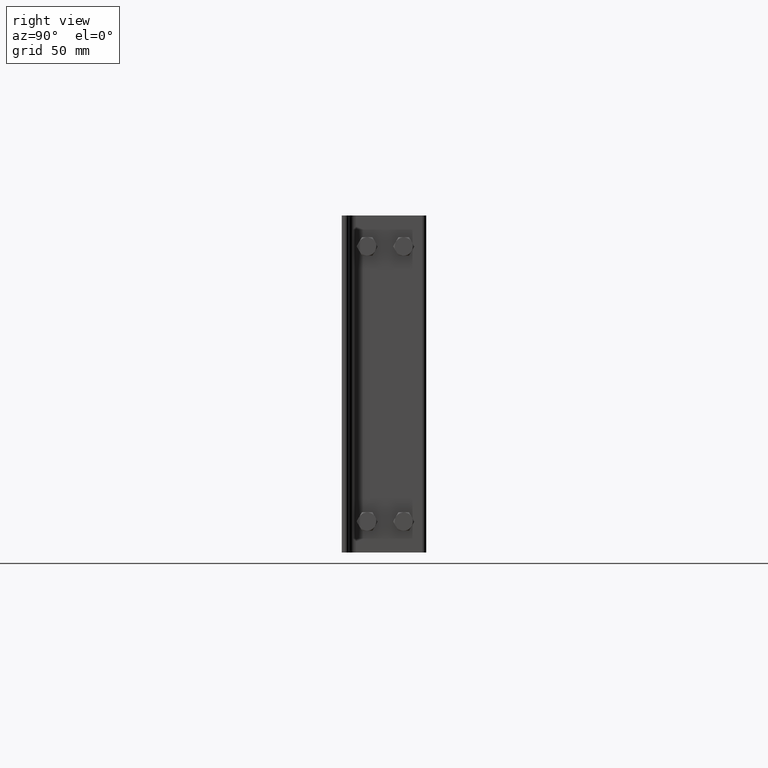
[diagram: clean part render]
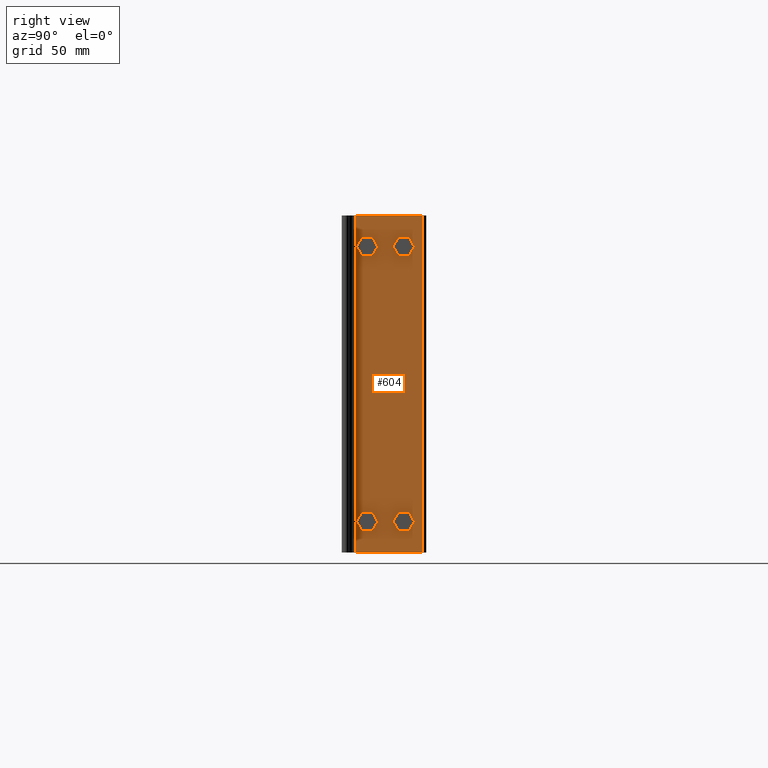
[diagram: same view with one face highlighted and labeled with its STEP entity id]
A machine part, right view. The second image highlights one B-rep face of the part: STEP entity #604.
In plain terms, the highlighted planar face has unit normal (1, -0, 0).
Its self-contained STEP definition (entity closure, byte-faithful):
#151=CARTESIAN_POINT('',(4.999999999999957,48.249999999999993,22.0));
#152=VERTEX_POINT('',#151);
#153=CARTESIAN_POINT('',(4.999999999999965,44.0,22.0));
#154=DIRECTION('',(-1.0,0.0,0.0));
#155=DIRECTION('',(0.0,-1.0,0.0));
#156=AXIS2_PLACEMENT_3D('',#153,#154,#155);
#157=CIRCLE('',#156,4.25);
#158=EDGE_CURVE('',#152,#152,#157,.T.);
#179=CARTESIAN_POINT('',(4.999999999999957,48.249999999999993,217.50000000000003));
#180=VERTEX_POINT('',#179);
#181=CARTESIAN_POINT('',(4.999999999999965,44.0,217.50000000000003));
#182=DIRECTION('',(-1.0,0.0,0.0));
#183=DIRECTION('',(0.0,-1.0,0.0));
#184=AXIS2_PLACEMENT_3D('',#181,#182,#183);
#185=CIRCLE('',#184,4.25);
#186=EDGE_CURVE('',#180,#180,#185,.T.);
#207=CARTESIAN_POINT('',(4.999999999999965,22.249999999999996,22.0));
#208=VERTEX_POINT('',#207);
#209=CARTESIAN_POINT('',(4.999999999999965,18.0,22.0));
#210=DIRECTION('',(-1.0,0.0,0.0));
#211=DIRECTION('',(0.0,-1.0,0.0));
#212=AXIS2_PLACEMENT_3D('',#209,#210,#211);
#213=CIRCLE('',#212,4.25);
#214=EDGE_CURVE('',#208,#208,#213,.T.);
#235=CARTESIAN_POINT('',(4.999999999999965,22.249999999999996,217.50000000000003));
#236=VERTEX_POINT('',#235);
#237=CARTESIAN_POINT('',(4.999999999999965,18.0,217.50000000000003));
#238=DIRECTION('',(-1.0,0.0,0.0));
#239=DIRECTION('',(0.0,-1.0,0.0));
#240=AXIS2_PLACEMENT_3D('',#237,#238,#239);
#241=CIRCLE('',#240,4.25);
#242=EDGE_CURVE('',#236,#236,#241,.T.);
#431=CARTESIAN_POINT('',(4.999999999999982,57.0,0.0));
#432=VERTEX_POINT('',#431);
#440=CARTESIAN_POINT('',(4.999999999999991,9.999999999999998,0.0));
#441=VERTEX_POINT('',#440);
#442=CARTESIAN_POINT('',(4.999999999999991,9.999999999999998,0.0));
#443=DIRECTION('',(0.0,1.0,0.0));
#444=VECTOR('',#443,47.0);
#445=LINE('',#442,#444);
#446=EDGE_CURVE('',#441,#432,#445,.T.);
#466=CARTESIAN_POINT('',(4.999999999999982,57.0,239.50000000000003));
#467=VERTEX_POINT('',#466);
#475=CARTESIAN_POINT('',(4.999999999999982,57.0,239.50000000000003));
#476=DIRECTION('',(0.0,0.0,-1.0));
#477=VECTOR('',#476,239.50000000000003);
#478=LINE('',#475,#477);
#479=EDGE_CURVE('',#467,#432,#478,.T.);
#498=CARTESIAN_POINT('',(4.999999999999991,9.999999999999998,239.50000000000003));
#499=VERTEX_POINT('',#498);
#507=CARTESIAN_POINT('',(4.999999999999982,57.0,239.50000000000003));
#508=DIRECTION('',(0.0,-1.0,0.0));
#509=VECTOR('',#508,47.0);
#510=LINE('',#507,#509);
#511=EDGE_CURVE('',#467,#499,#510,.T.);
#570=CARTESIAN_POINT('',(4.999999999999992,9.999999999999998,0.0));
#571=DIRECTION('',(0.0,0.0,1.0));
#572=VECTOR('',#571,239.50000000000003);
#573=LINE('',#570,#572);
#574=EDGE_CURVE('',#441,#499,#573,.T.);
#581=CARTESIAN_POINT('',(4.999999999999981,60.0,0.0));
#582=DIRECTION('',(1.0,0.0,0.0));
#583=DIRECTION('',(0.0,0.0,-1.0));
#584=AXIS2_PLACEMENT_3D('',#581,#582,#583);
#585=PLANE('',#584);
#586=ORIENTED_EDGE('',*,*,#479,.F.);
#587=ORIENTED_EDGE('',*,*,#511,.T.);
#588=ORIENTED_EDGE('',*,*,#574,.F.);
#589=ORIENTED_EDGE('',*,*,#446,.T.);
#590=EDGE_LOOP('',(#586,#587,#588,#589));
#591=FACE_OUTER_BOUND('',#590,.T.);
#592=ORIENTED_EDGE('',*,*,#158,.T.);
#593=EDGE_LOOP('',(#592));
#594=FACE_BOUND('',#593,.T.);
#595=ORIENTED_EDGE('',*,*,#186,.T.);
#596=EDGE_LOOP('',(#595));
#597=FACE_BOUND('',#596,.T.);
#598=ORIENTED_EDGE('',*,*,#214,.T.);
#599=EDGE_LOOP('',(#598));
#600=FACE_BOUND('',#599,.T.);
#601=ORIENTED_EDGE('',*,*,#242,.T.);
#602=EDGE_LOOP('',(#601));
#603=FACE_BOUND('',#602,.T.);
#604=ADVANCED_FACE('',(#591,#594,#597,#600,#603),#585,.T.);